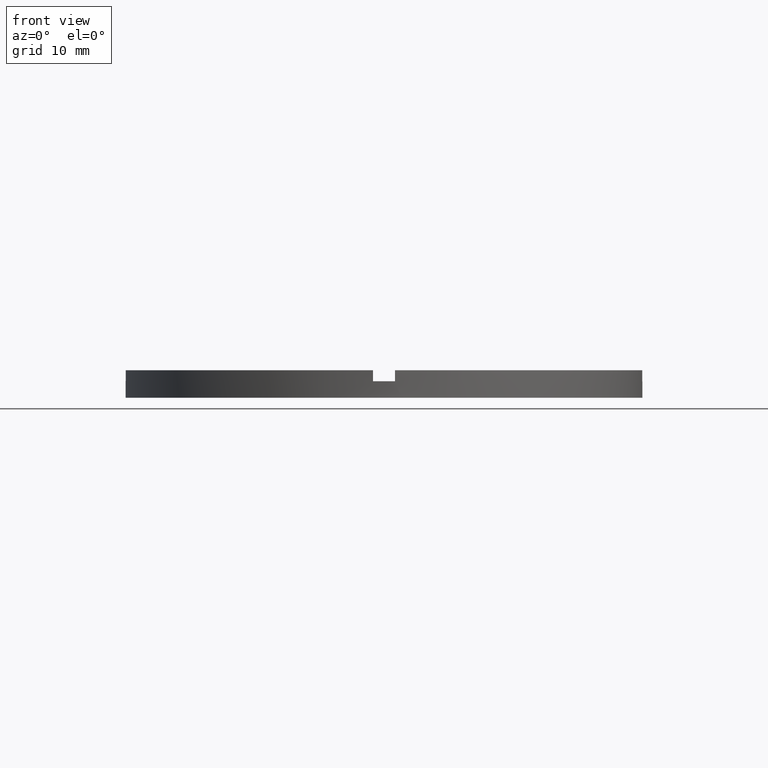
[diagram: clean part render]
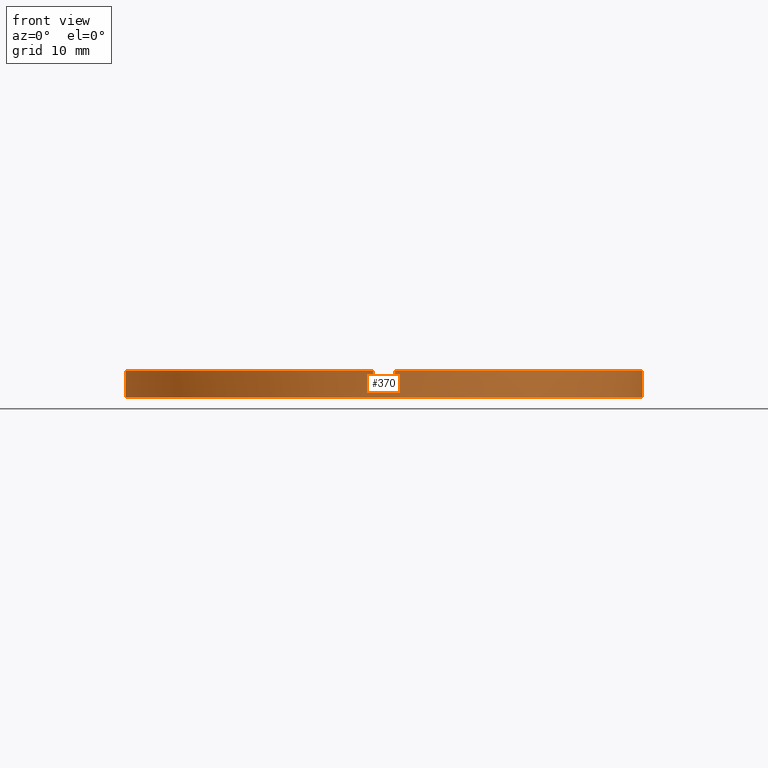
[diagram: same view with one face highlighted and labeled with its STEP entity id]
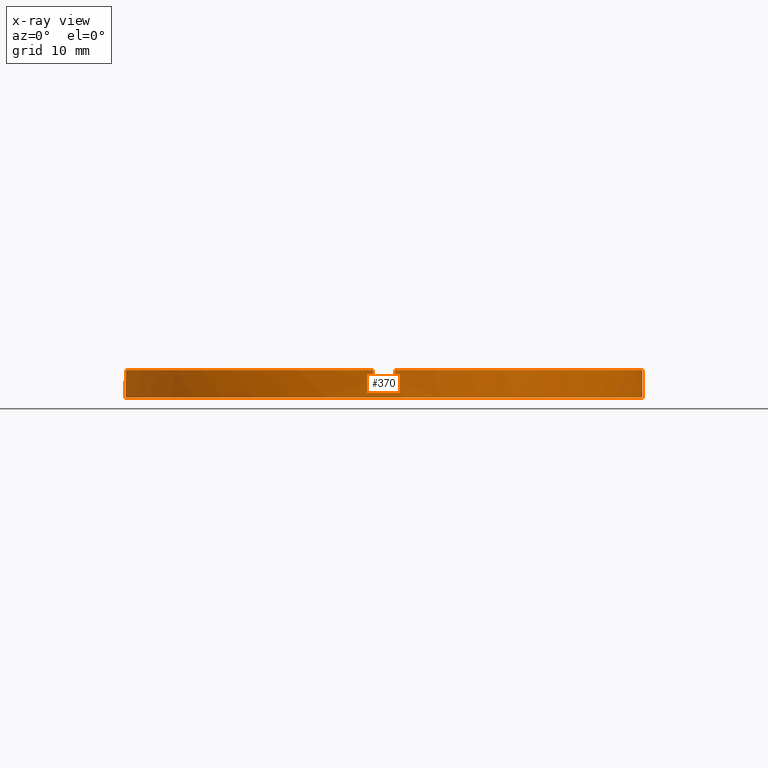
[diagram: x-ray of the same camera — body ghosted, the highlighted face saturated]
A machine part, front view. The second image highlights one B-rep face of the part: STEP entity #370.
The next image is the same camera in x-ray: the body ghosted, the highlighted face saturated — about 0% of this face is hidden behind the body in this view.
In plain terms, the highlighted cylindrical surface (partial cylindrical patch) has radius 23.5 mm, axis along (-0, -0, -1).
Its self-contained STEP definition (entity closure, byte-faithful):
#11 = AXIS2_PLACEMENT_3D ( 'NONE', #760, #40, #524 ) ;
#22 = DIRECTION ( 'NONE',  ( 0.000000000000000000, 0.000000000000000000, 1.000000000000000000 ) ) ;
#24 = VERTEX_POINT ( 'NONE', #392 ) ;
#27 = AXIS2_PLACEMENT_3D ( 'NONE', #266, #626, #384 ) ;
#29 = CARTESIAN_POINT ( 'NONE',  ( -1.000000000000160982, -23.47871376374778407, 2.500000000000000000 ) ) ;
#35 = CARTESIAN_POINT ( 'NONE',  ( 0.000000000000000000, 0.000000000000000000, 1.500000000000000000 ) ) ;
#39 = EDGE_CURVE ( 'NONE', #57, #223, #169, .T. ) ;
#40 = DIRECTION ( 'NONE',  ( 0.000000000000000000, 0.000000000000000000, 1.000000000000000000 ) ) ;
#54 = DIRECTION ( 'NONE',  ( 0.000000000000000000, 0.000000000000000000, 1.000000000000000000 ) ) ;
#57 = VERTEX_POINT ( 'NONE', #91 ) ;
#74 = EDGE_CURVE ( 'NONE', #560, #223, #701, .T. ) ;
#80 = CARTESIAN_POINT ( 'NONE',  ( 0.9999999999998386846, -23.47871376374779473, 2.500000000000000000 ) ) ;
#81 = AXIS2_PLACEMENT_3D ( 'NONE', #382, #54, #601 ) ;
#91 = CARTESIAN_POINT ( 'NONE',  ( -23.50000000000000355, 0.000000000000000000, 0.000000000000000000 ) ) ;
#95 = CARTESIAN_POINT ( 'NONE',  ( 23.50000000000000355, 2.877919977996280715E-15, 2.500000000000000000 ) ) ;
#98 = CARTESIAN_POINT ( 'NONE',  ( 0.9999999999998391287, -23.47871376374779828, 2.500000000000000000 ) ) ;
#111 = CARTESIAN_POINT ( 'NONE',  ( -23.50000000000000355, 0.000000000000000000, 1.500000000000000000 ) ) ;
#113 = EDGE_CURVE ( 'NONE', #234, #537, #142, .T. ) ;
#124 = ORIENTED_EDGE ( 'NONE', *, *, #74, .F. ) ;
#126 = ORIENTED_EDGE ( 'NONE', *, *, #653, .F. ) ;
#131 = CARTESIAN_POINT ( 'NONE',  ( -1.000000000000160538, -23.47871376374778052, 2.500000000000000000 ) ) ;
#137 = CARTESIAN_POINT ( 'NONE',  ( 23.50000000000000355, 2.877919977996280715E-15, 0.000000000000000000 ) ) ;
#141 = ORIENTED_EDGE ( 'NONE', *, *, #582, .T. ) ;
#142 = LINE ( 'NONE', #613, #409 ) ;
#153 = ORIENTED_EDGE ( 'NONE', *, *, #627, .F. ) ;
#157 = ORIENTED_EDGE ( 'NONE', *, *, #197, .T. ) ;
#159 = VERTEX_POINT ( 'NONE', #443 ) ;
#169 = CIRCLE ( 'NONE', #512, 23.50000000000000355 ) ;
#174 = VECTOR ( 'NONE', #568, 1000.000000000000000 ) ;
#177 = LINE ( 'NONE', #98, #739 ) ;
#182 = FACE_OUTER_BOUND ( 'NONE', #755, .T. ) ;
#197 = EDGE_CURVE ( 'NONE', #555, #24, #177, .T. ) ;
#204 = EDGE_CURVE ( 'NONE', #234, #416, #442, .T. ) ;
#207 = CARTESIAN_POINT ( 'NONE',  ( 0.000000000000000000, 0.000000000000000000, 2.500000000000000000 ) ) ;
#221 = LINE ( 'NONE', #353, #774 ) ;
#223 = VERTEX_POINT ( 'NONE', #137 ) ;
#228 = LINE ( 'NONE', #29, #773 ) ;
#234 = VERTEX_POINT ( 'NONE', #288 ) ;
#249 = DIRECTION ( 'NONE',  ( -0.000000000000000000, -0.000000000000000000, -1.000000000000000000 ) ) ;
#260 = CARTESIAN_POINT ( 'NONE',  ( -1.000000000000160538, -23.47871376374778052, 1.500000000000000000 ) ) ;
#266 = CARTESIAN_POINT ( 'NONE',  ( 0.000000000000000000, 0.000000000000000000, 1.500000000000000000 ) ) ;
#276 = CARTESIAN_POINT ( 'NONE',  ( 0.000000000000000000, 0.000000000000000000, 1.500000000000000000 ) ) ;
#278 = DIRECTION ( 'NONE',  ( -1.000000000000000000, 0.000000000000000000, 0.000000000000000000 ) ) ;
#288 = CARTESIAN_POINT ( 'NONE',  ( -23.47871376374779118, -1.000000000000025535, 2.500000000000000000 ) ) ;
#315 = CARTESIAN_POINT ( 'NONE',  ( 23.50000000000000355, 2.877919977996280715E-15, 1.500000000000000000 ) ) ;
#320 = DIRECTION ( 'NONE',  ( 1.000000000000000000, 0.000000000000000000, 0.000000000000000000 ) ) ;
#332 = DIRECTION ( 'NONE',  ( -0.000000000000000000, -0.000000000000000000, -1.000000000000000000 ) ) ;
#333 = CARTESIAN_POINT ( 'NONE',  ( -23.47871376374779118, -1.000000000000025535, 1.500000000000000000 ) ) ;
#340 = DIRECTION ( 'NONE',  ( 0.000000000000000000, 0.000000000000000000, 1.000000000000000000 ) ) ;
#353 = CARTESIAN_POINT ( 'NONE',  ( 23.47871376374778407, -1.000000000000157874, 2.500000000000000000 ) ) ;
#370 = ADVANCED_FACE ( 'NONE', ( #182 ), #713, .T. ) ;
#379 = ORIENTED_EDGE ( 'NONE', *, *, #39, .T. ) ;
#382 = CARTESIAN_POINT ( 'NONE',  ( 0.000000000000000000, 0.000000000000000000, 2.500000000000000000 ) ) ;
#384 = DIRECTION ( 'NONE',  ( 1.000000000000000000, 0.000000000000000000, 0.000000000000000000 ) ) ;
#386 = DIRECTION ( 'NONE',  ( 1.000000000000000000, 0.000000000000000000, 0.000000000000000000 ) ) ;
#389 = ORIENTED_EDGE ( 'NONE', *, *, #113, .T. ) ;
#392 = CARTESIAN_POINT ( 'NONE',  ( 0.9999999999998386846, -23.47871376374779473, 1.500000000000000000 ) ) ;
#404 = AXIS2_PLACEMENT_3D ( 'NONE', #276, #664, #320 ) ;
#406 = CARTESIAN_POINT ( 'NONE',  ( -23.50000000000000355, 0.000000000000000000, 2.500000000000000000 ) ) ;
#409 = VECTOR ( 'NONE', #651, 1000.000000000000000 ) ;
#416 = VERTEX_POINT ( 'NONE', #131 ) ;
#421 = ORIENTED_EDGE ( 'NONE', *, *, #639, .F. ) ;
#442 = CIRCLE ( 'NONE', #81, 23.50000000000000355 ) ;
#443 = CARTESIAN_POINT ( 'NONE',  ( 23.47871376374778407, -1.000000000000157874, 2.500000000000000000 ) ) ;
#462 = AXIS2_PLACEMENT_3D ( 'NONE', #35, #562, #386 ) ;
#470 = DIRECTION ( 'NONE',  ( -0.000000000000000000, -0.000000000000000000, -1.000000000000000000 ) ) ;
#487 = VECTOR ( 'NONE', #249, 1000.000000000000000 ) ;
#489 = CIRCLE ( 'NONE', #11, 23.50000000000000355 ) ;
#499 = LINE ( 'NONE', #406, #487 ) ;
#503 = CIRCLE ( 'NONE', #404, 23.50000000000000355 ) ;
#506 = CIRCLE ( 'NONE', #27, 23.50000000000000355 ) ;
#512 = AXIS2_PLACEMENT_3D ( 'NONE', #616, #340, #732 ) ;
#524 = DIRECTION ( 'NONE',  ( 1.000000000000000000, 0.000000000000000000, 0.000000000000000000 ) ) ;
#537 = VERTEX_POINT ( 'NONE', #333 ) ;
#539 = EDGE_CURVE ( 'NONE', #546, #416, #228, .T. ) ;
#543 = VERTEX_POINT ( 'NONE', #111 ) ;
#546 = VERTEX_POINT ( 'NONE', #260 ) ;
#552 = EDGE_CURVE ( 'NONE', #546, #24, #771, .T. ) ;
#555 = VERTEX_POINT ( 'NONE', #80 ) ;
#560 = VERTEX_POINT ( 'NONE', #315 ) ;
#562 = DIRECTION ( 'NONE',  ( -0.000000000000000000, 0.000000000000000000, 1.000000000000000000 ) ) ;
#568 = DIRECTION ( 'NONE',  ( -0.000000000000000000, -0.000000000000000000, -1.000000000000000000 ) ) ;
#582 = EDGE_CURVE ( 'NONE', #687, #159, #221, .T. ) ;
#586 = EDGE_CURVE ( 'NONE', #543, #57, #499, .T. ) ;
#599 = DIRECTION ( 'NONE',  ( 0.000000000000000000, 0.000000000000000000, 1.000000000000000000 ) ) ;
#601 = DIRECTION ( 'NONE',  ( 1.000000000000000000, 0.000000000000000000, 0.000000000000000000 ) ) ;
#613 = CARTESIAN_POINT ( 'NONE',  ( -23.47871376374779118, -1.000000000000025535, 2.500000000000000000 ) ) ;
#616 = CARTESIAN_POINT ( 'NONE',  ( 0.000000000000000000, 0.000000000000000000, 0.000000000000000000 ) ) ;
#626 = DIRECTION ( 'NONE',  ( 0.000000000000000000, 0.000000000000000000, 1.000000000000000000 ) ) ;
#627 = EDGE_CURVE ( 'NONE', #555, #159, #489, .T. ) ;
#639 = EDGE_CURVE ( 'NONE', #543, #537, #503, .T. ) ;
#651 = DIRECTION ( 'NONE',  ( -0.000000000000000000, -0.000000000000000000, -1.000000000000000000 ) ) ;
#653 = EDGE_CURVE ( 'NONE', #687, #560, #506, .T. ) ;
#664 = DIRECTION ( 'NONE',  ( 0.000000000000000000, 0.000000000000000000, 1.000000000000000000 ) ) ;
#669 = ORIENTED_EDGE ( 'NONE', *, *, #539, .T. ) ;
#687 = VERTEX_POINT ( 'NONE', #711 ) ;
#690 = ORIENTED_EDGE ( 'NONE', *, *, #586, .T. ) ;
#692 = ORIENTED_EDGE ( 'NONE', *, *, #204, .F. ) ;
#696 = ORIENTED_EDGE ( 'NONE', *, *, #552, .F. ) ;
#701 = LINE ( 'NONE', #95, #174 ) ;
#711 = CARTESIAN_POINT ( 'NONE',  ( 23.47871376374778407, -1.000000000000157874, 1.500000000000000000 ) ) ;
#713 = CYLINDRICAL_SURFACE ( 'NONE', #779, 23.50000000000000355 ) ;
#732 = DIRECTION ( 'NONE',  ( 1.000000000000000000, 0.000000000000000000, 0.000000000000000000 ) ) ;
#739 = VECTOR ( 'NONE', #470, 1000.000000000000000 ) ;
#755 = EDGE_LOOP ( 'NONE', ( #124, #126, #141, #153, #157, #696, #669, #692, #389, #421, #690, #379 ) ) ;
#760 = CARTESIAN_POINT ( 'NONE',  ( 0.000000000000000000, 0.000000000000000000, 2.500000000000000000 ) ) ;
#771 = CIRCLE ( 'NONE', #462, 23.50000000000000355 ) ;
#773 = VECTOR ( 'NONE', #599, 1000.000000000000000 ) ;
#774 = VECTOR ( 'NONE', #22, 1000.000000000000000 ) ;
#779 = AXIS2_PLACEMENT_3D ( 'NONE', #207, #332, #278 ) ;